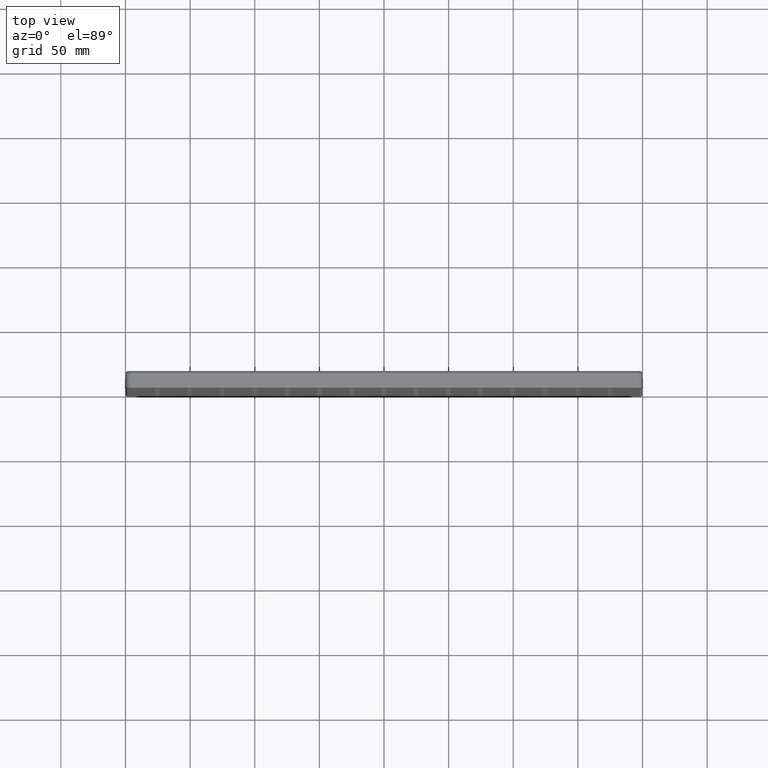
[diagram: clean part render]
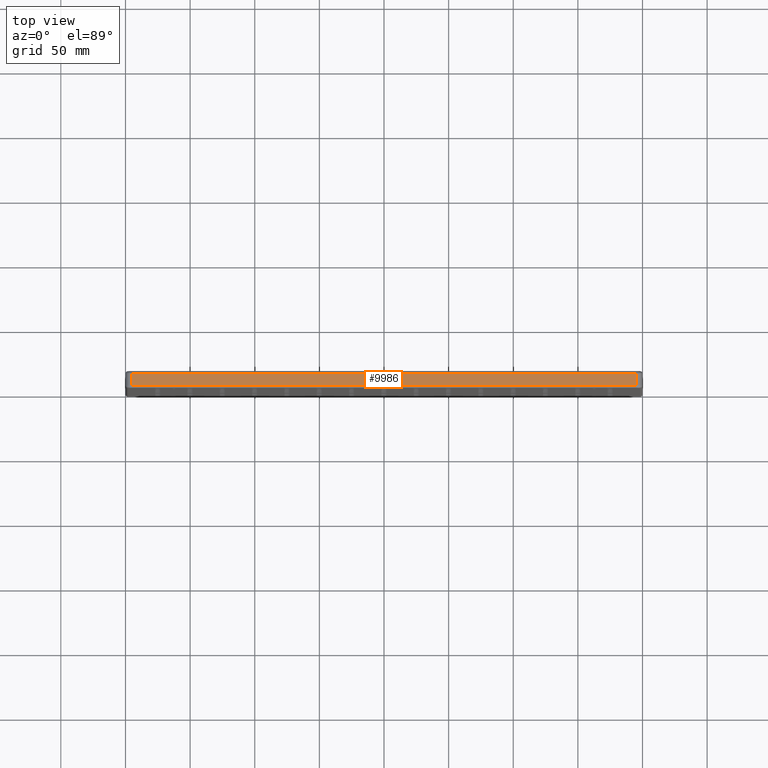
[diagram: same view with one face highlighted and labeled with its STEP entity id]
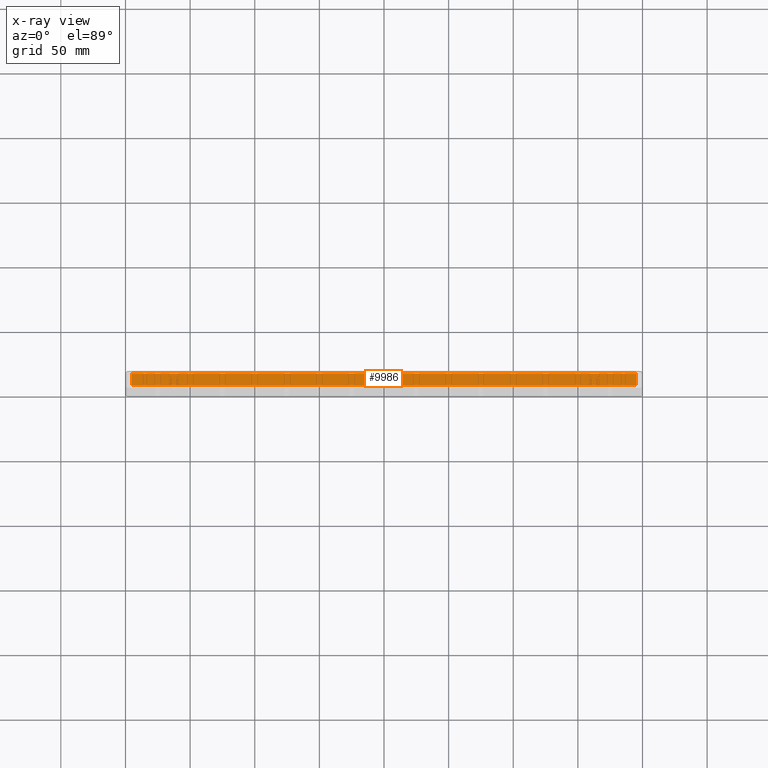
[diagram: x-ray of the same camera — body ghosted, the highlighted face saturated]
A machine part, top view. The second image highlights one B-rep face of the part: STEP entity #9986.
The next image is the same camera in x-ray: the body ghosted, the highlighted face saturated — about 0% of this face is hidden behind the body in this view.
In plain terms, the highlighted planar face has unit normal (-0, 0, -1).
Its self-contained STEP definition (entity closure, byte-faithful):
#782 = VECTOR ( 'NONE', #5262, 1000.000000000000000 ) ;
#1584 = ORIENTED_EDGE ( 'NONE', *, *, #16895, .T. ) ;
#1702 = DIRECTION ( 'NONE',  ( -0.0000000000000000000, -1.000000000000000000, -0.0000000000000000000 ) ) ;
#2840 = VECTOR ( 'NONE', #5452, 1000.000000000000000 ) ;
#3082 = EDGE_CURVE ( 'NONE', #11447, #10829, #6112, .T. ) ;
#3516 = CARTESIAN_POINT ( 'NONE',  ( -194.9999999999999400, 11.00000000000000000, 200.0000000000000000 ) ) ;
#4728 = LINE ( 'NONE', #3516, #7419 ) ;
#4908 = DIRECTION ( 'NONE',  ( -1.000000000000000000, -0.0000000000000000000, 1.423362852083534100E-016 ) ) ;
#5153 = CARTESIAN_POINT ( 'NONE',  ( 195.0000000000000000, 11.00000000000000000, 199.9999999999999400 ) ) ;
#5262 = DIRECTION ( 'NONE',  ( 1.000000000000000000, 0.0000000000000000000, -1.423362852083534100E-016 ) ) ;
#5452 = DIRECTION ( 'NONE',  ( -0.0000000000000000000, -1.000000000000000000, -0.0000000000000000000 ) ) ;
#5459 = VERTEX_POINT ( 'NONE', #14701 ) ;
#5476 = ORIENTED_EDGE ( 'NONE', *, *, #3082, .T. ) ;
#6079 = CARTESIAN_POINT ( 'NONE',  ( -194.9999999999999400, 2.000000000000003600, 200.0000000000000000 ) ) ;
#6112 = LINE ( 'NONE', #12481, #2840 ) ;
#6694 = VERTEX_POINT ( 'NONE', #5153 ) ;
#6836 = EDGE_LOOP ( 'NONE', ( #5476, #1584, #15049, #10624 ) ) ;
#7419 = VECTOR ( 'NONE', #4908, 1000.000000000000000 ) ;
#8409 = FACE_OUTER_BOUND ( 'NONE', #6836, .T. ) ;
#8416 = PLANE ( 'NONE',  #9458 ) ;
#8495 = EDGE_CURVE ( 'NONE', #6694, #5459, #12304, .T. ) ;
#9458 = AXIS2_PLACEMENT_3D ( 'NONE', #9951, #14232, #18326 ) ;
#9951 = CARTESIAN_POINT ( 'NONE',  ( -194.9999999999999400, 13.00000000000000000, 200.0000000000000000 ) ) ;
#9986 = ADVANCED_FACE ( 'NONE', ( #8409 ), #8416, .F. ) ;
#10624 = ORIENTED_EDGE ( 'NONE', *, *, #12609, .T. ) ;
#10763 = VECTOR ( 'NONE', #1702, 1000.000000000000000 ) ;
#10829 = VERTEX_POINT ( 'NONE', #6079 ) ;
#10898 = CARTESIAN_POINT ( 'NONE',  ( -194.9999999999999400, 2.000000000000000000, 200.0000000000000000 ) ) ;
#11447 = VERTEX_POINT ( 'NONE', #14425 ) ;
#12304 = LINE ( 'NONE', #15714, #10763 ) ;
#12481 = CARTESIAN_POINT ( 'NONE',  ( -194.9999999999999400, 13.00000000000000000, 200.0000000000000000 ) ) ;
#12609 = EDGE_CURVE ( 'NONE', #6694, #11447, #4728, .T. ) ;
#14232 = DIRECTION ( 'NONE',  ( -1.423362852083534100E-016, 0.0000000000000000000, -1.000000000000000000 ) ) ;
#14425 = CARTESIAN_POINT ( 'NONE',  ( -194.9999999999999400, 11.00000000000000000, 200.0000000000000000 ) ) ;
#14701 = CARTESIAN_POINT ( 'NONE',  ( 195.0000000000000000, 2.000000000000003600, 199.9999999999999400 ) ) ;
#15049 = ORIENTED_EDGE ( 'NONE', *, *, #8495, .F. ) ;
#15615 = LINE ( 'NONE', #10898, #782 ) ;
#15714 = CARTESIAN_POINT ( 'NONE',  ( 195.0000000000000000, 13.00000000000000000, 199.9999999999999400 ) ) ;
#16895 = EDGE_CURVE ( 'NONE', #10829, #5459, #15615, .T. ) ;
#18326 = DIRECTION ( 'NONE',  ( -1.000000000000000000, 0.0000000000000000000, 1.423362852083534100E-016 ) ) ;